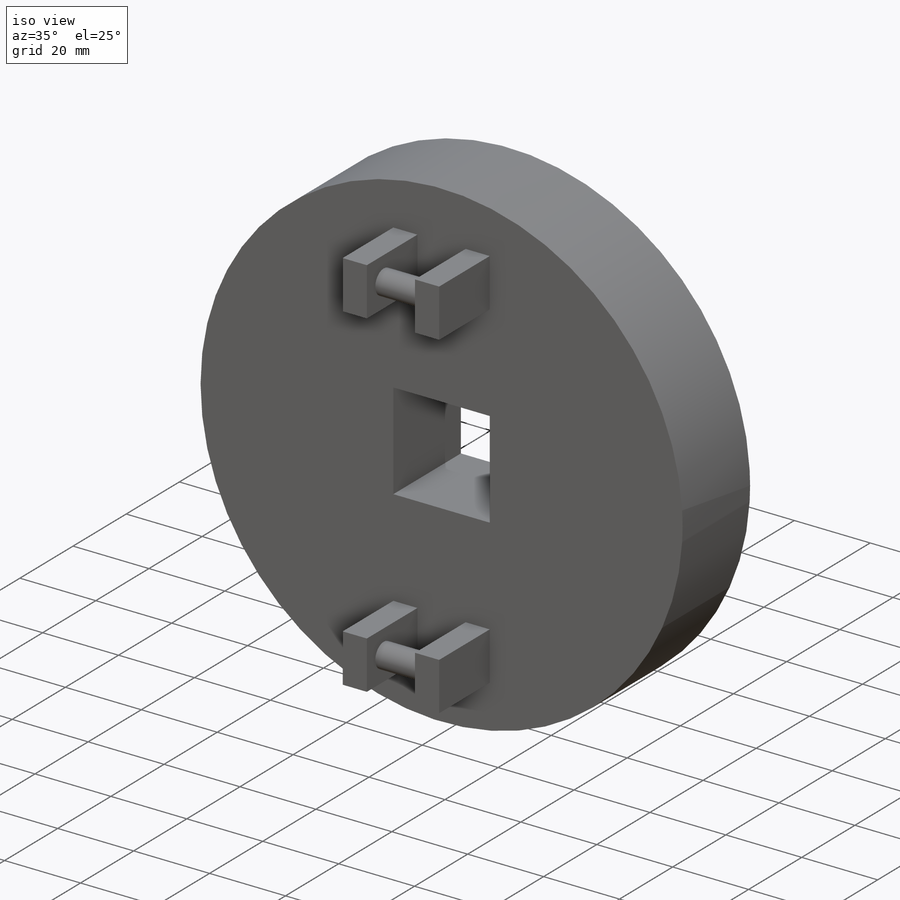
[diagram: iso view]
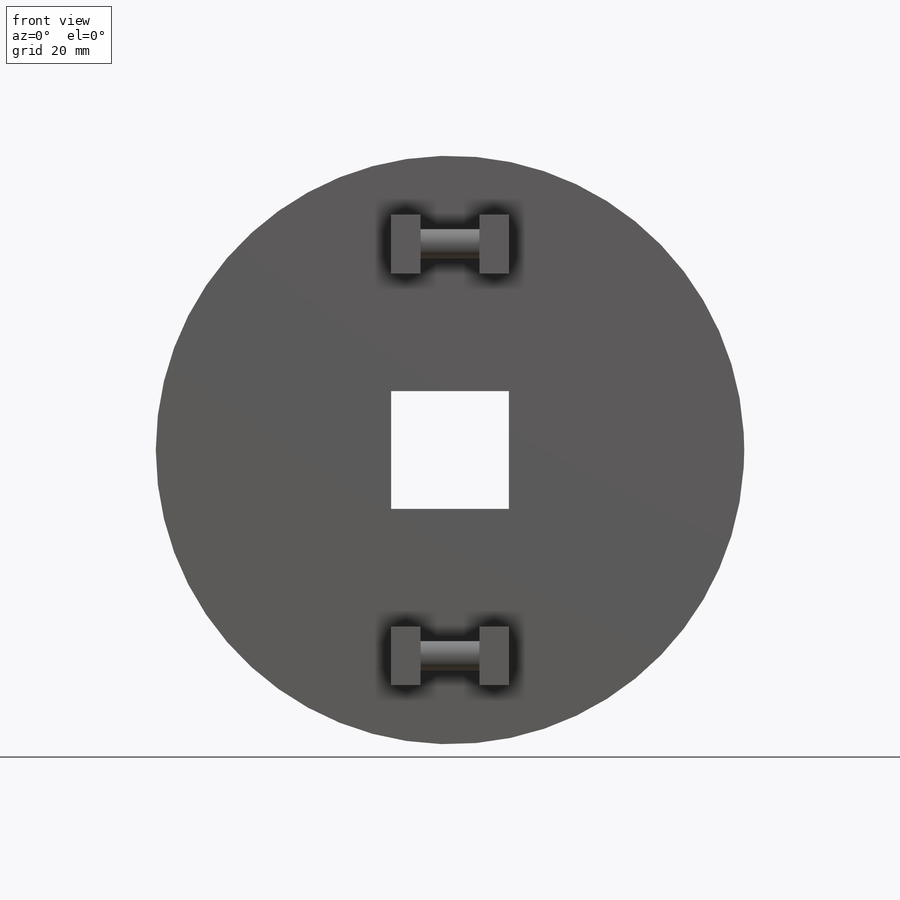
[diagram: front view]
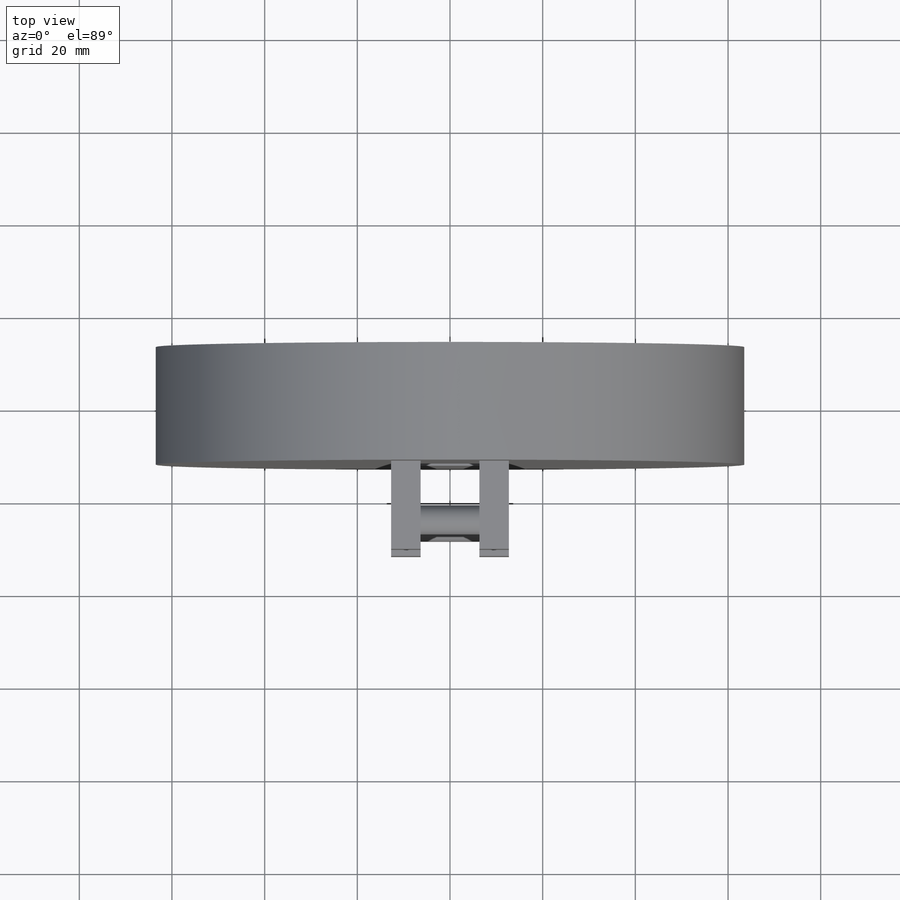
[diagram: top view]
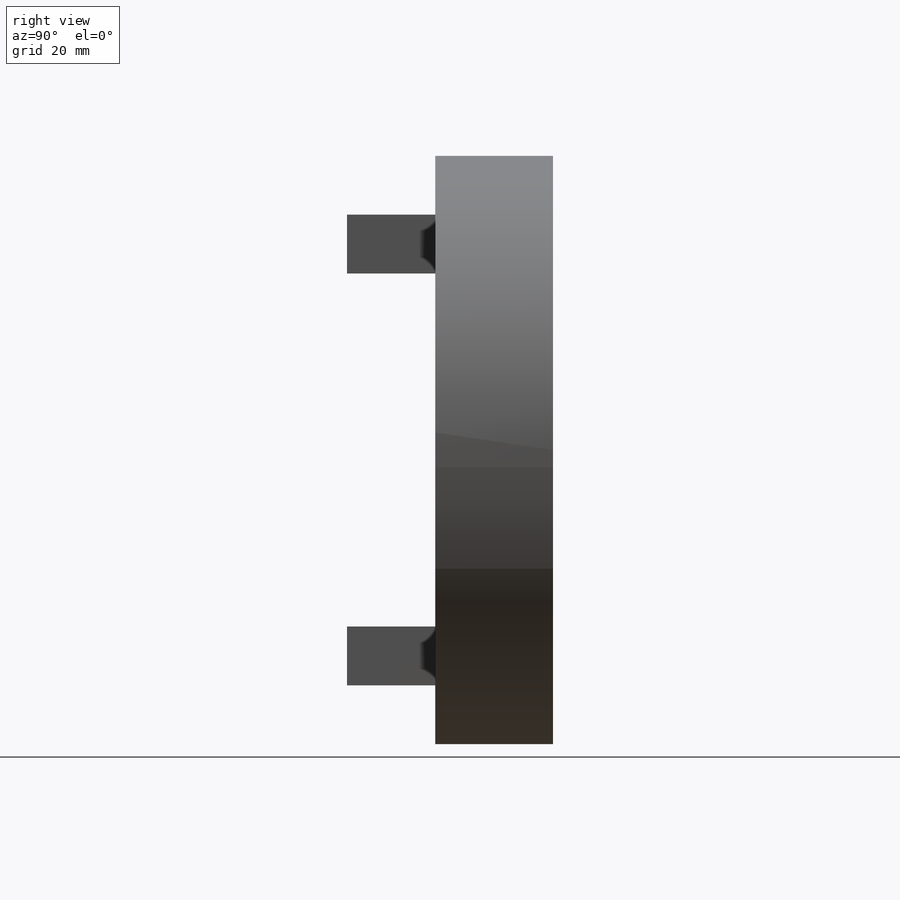
[diagram: right view]
SOLIDWORKS PART (.sldprt)
format: sldprt  version: not decoded by parser v0  size: 182,784 bytes
history: native  units: mm
features: sketch x4, extrude x3, material x1, mirror x1, cut_extrude x1 (+12 scaffold rows collapsed)
feature tree (22):
  scaffold x12  (default folders/planes/origin — collapsed)
  material  "Material <not specified>"
  sketch  "Sketch1"  dims[D1=127.0mm]
  extrude  "Boss-Extrude1"  Depth=25.4mm
  sketch  "Sketch3"  dims[D1=25.4mm D2=12.7mm D3=38.1mm D4=6.35mm D5=6.35mm]
  extrude  "Boss-Extrude2"  Depth=19.05mm
  sketch  "Sketch4"  dims[D1=6.35mm D2=6.35mm D3=6.35mm]
  extrude  "Boss-Extrude3"  [1 undecoded]
  mirror  "Mirror1"
  sketch  "Sketch5"  dims[D1=25.4mm D2=25.4mm D3=~14.745281mm]
  cut_extrude  "Cut-Extrude1"  [1 undecoded]
decode coverage: 6 of 9 modeling features carry decoded parameters
note: ~ marks probable driven/reference dimensions
note: 2 parameter values undecoded
note: suppression state not decoded; provenance and decode notes live in map.json
